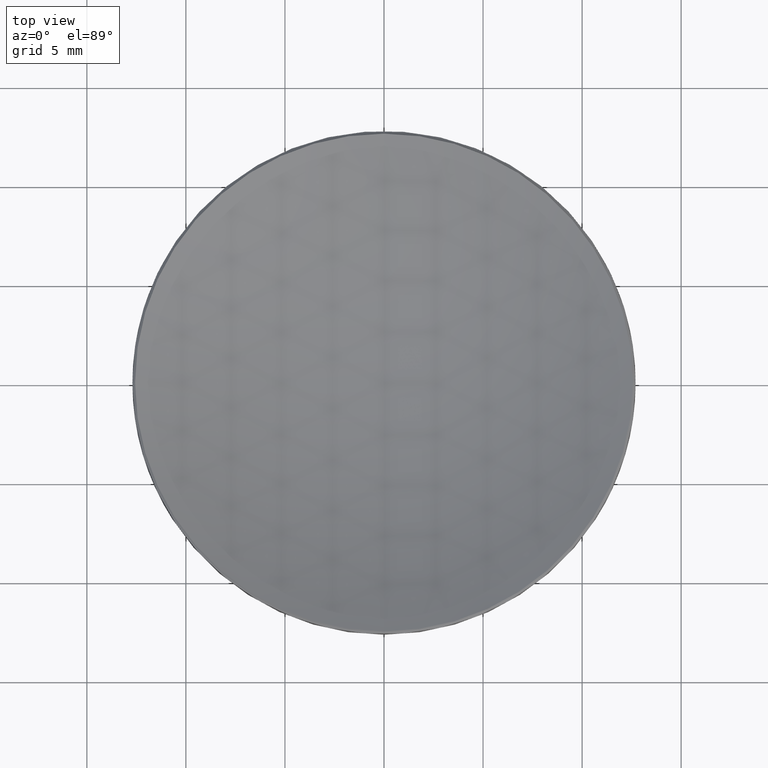
[diagram: clean part render]
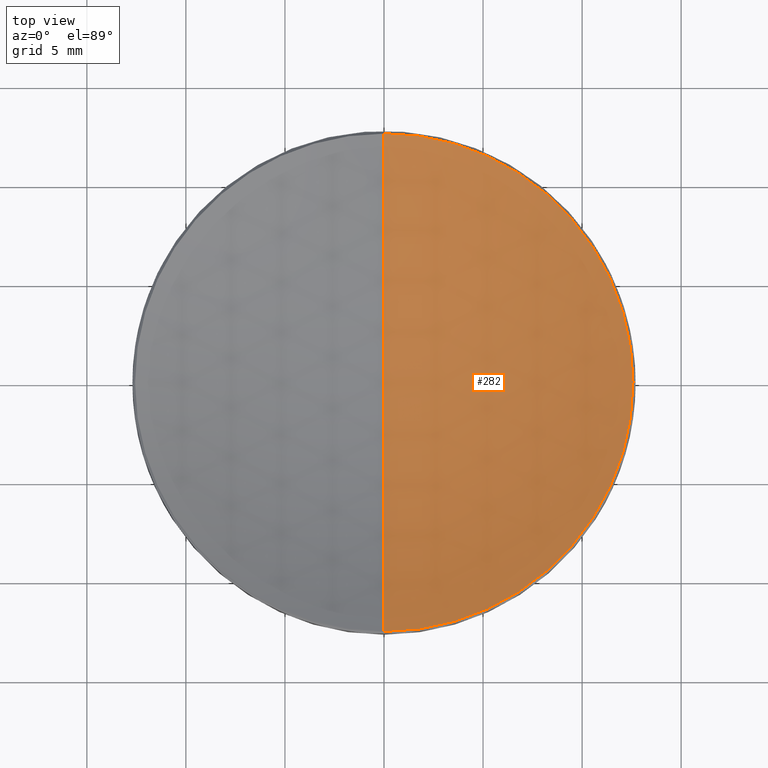
[diagram: same view with one face highlighted and labeled with its STEP entity id]
A machine part, top view. The second image highlights one B-rep face of the part: STEP entity #282.
In plain terms, the highlighted spherical surface has radius 28 mm.
Its self-contained STEP definition (entity closure, byte-faithful):
#8 = ORIENTED_EDGE ( 'NONE', *, *, #40, .T. ) ;
#10 = CARTESIAN_POINT ( 'NONE',  ( -1.539033449312763562E-15, -12.56716181665030874, 11.93283818334969126 ) ) ;
#15 = CIRCLE ( 'NONE', #270, 12.56716181665030341 ) ;
#19 = FACE_OUTER_BOUND ( 'NONE', #93, .T. ) ;
#20 = ORIENTED_EDGE ( 'NONE', *, *, #140, .T. ) ;
#22 = EDGE_CURVE ( 'NONE', #197, #242, #192, .T. ) ;
#27 = CIRCLE ( 'NONE', #92, 27.99999999999999645 ) ;
#40 = EDGE_CURVE ( 'NONE', #48, #222, #15, .T. ) ;
#41 = CARTESIAN_POINT ( 'NONE',  ( 0.000000000000000000, 0.000000000000000000, 36.95415797016601545 ) ) ;
#42 = CARTESIAN_POINT ( 'NONE',  ( 0.000000000000000000, 12.56716181665030874, 11.93283818334969126 ) ) ;
#47 = CARTESIAN_POINT ( 'NONE',  ( 0.000000000000000000, 0.000000000000000000, 36.95415797016601545 ) ) ;
#48 = VERTEX_POINT ( 'NONE', #10 ) ;
#49 = ORIENTED_EDGE ( 'NONE', *, *, #107, .T. ) ;
#70 = DIRECTION ( 'NONE',  ( 0.000000000000000000, 0.000000000000000000, -1.000000000000000000 ) ) ;
#92 = AXIS2_PLACEMENT_3D ( 'NONE', #278, #115, #234 ) ;
#93 = EDGE_LOOP ( 'NONE', ( #95, #20, #8, #49 ) ) ;
#95 = ORIENTED_EDGE ( 'NONE', *, *, #22, .F. ) ;
#101 = DIRECTION ( 'NONE',  ( 0.000000000000000000, 1.000000000000000000, 0.000000000000000000 ) ) ;
#107 = EDGE_CURVE ( 'NONE', #222, #242, #238, .T. ) ;
#115 = DIRECTION ( 'NONE',  ( -1.000000000000000000, 1.224646799147353207E-16, 0.000000000000000000 ) ) ;
#119 = DIRECTION ( 'NONE',  ( 1.000000000000000000, 0.000000000000000000, 0.000000000000000000 ) ) ;
#121 = DIRECTION ( 'NONE',  ( -1.000000000000000000, 0.000000000000000000, 0.000000000000000000 ) ) ;
#122 = AXIS2_PLACEMENT_3D ( 'NONE', #41, #121, #101 ) ;
#127 = AXIS2_PLACEMENT_3D ( 'NONE', #228, #159, #244 ) ;
#140 = EDGE_CURVE ( 'NONE', #197, #48, #27, .T. ) ;
#155 = DIRECTION ( 'NONE',  ( 1.000000000000000000, 0.000000000000000000, 0.000000000000000000 ) ) ;
#159 = DIRECTION ( 'NONE',  ( -0.000000000000000000, -0.000000000000000000, 1.000000000000000000 ) ) ;
#191 = CARTESIAN_POINT ( 'NONE',  ( 0.000000000000000000, 0.000000000000000000, 11.93283818334969126 ) ) ;
#192 = CIRCLE ( 'NONE', #245, 27.99999999999999645 ) ;
#197 = VERTEX_POINT ( 'NONE', #231 ) ;
#199 = DIRECTION ( 'NONE',  ( -0.000000000000000000, -0.000000000000000000, 1.000000000000000000 ) ) ;
#222 = VERTEX_POINT ( 'NONE', #233 ) ;
#228 = CARTESIAN_POINT ( 'NONE',  ( 0.000000000000000000, 0.000000000000000000, 11.93283818334969126 ) ) ;
#231 = CARTESIAN_POINT ( 'NONE',  ( 0.000000000000000000, 1.714505518806294441E-15, 8.954157970166020775 ) ) ;
#232 = SPHERICAL_SURFACE ( 'NONE', #122, 27.99999999999999645 ) ;
#233 = CARTESIAN_POINT ( 'NONE',  ( 12.56716181665030341, 1.547167442114950603E-15, 11.93283818334969126 ) ) ;
#234 = DIRECTION ( 'NONE',  ( -1.224646799147353207E-16, -1.000000000000000000, 0.000000000000000000 ) ) ;
#238 = CIRCLE ( 'NONE', #127, 12.56716181665030341 ) ;
#242 = VERTEX_POINT ( 'NONE', #42 ) ;
#244 = DIRECTION ( 'NONE',  ( 1.000000000000000000, 0.000000000000000000, 0.000000000000000000 ) ) ;
#245 = AXIS2_PLACEMENT_3D ( 'NONE', #47, #155, #70 ) ;
#270 = AXIS2_PLACEMENT_3D ( 'NONE', #191, #199, #119 ) ;
#278 = CARTESIAN_POINT ( 'NONE',  ( 0.000000000000000000, 0.000000000000000000, 36.95415797016601545 ) ) ;
#282 = ADVANCED_FACE ( 'NONE', ( #19 ), #232, .F. ) ;